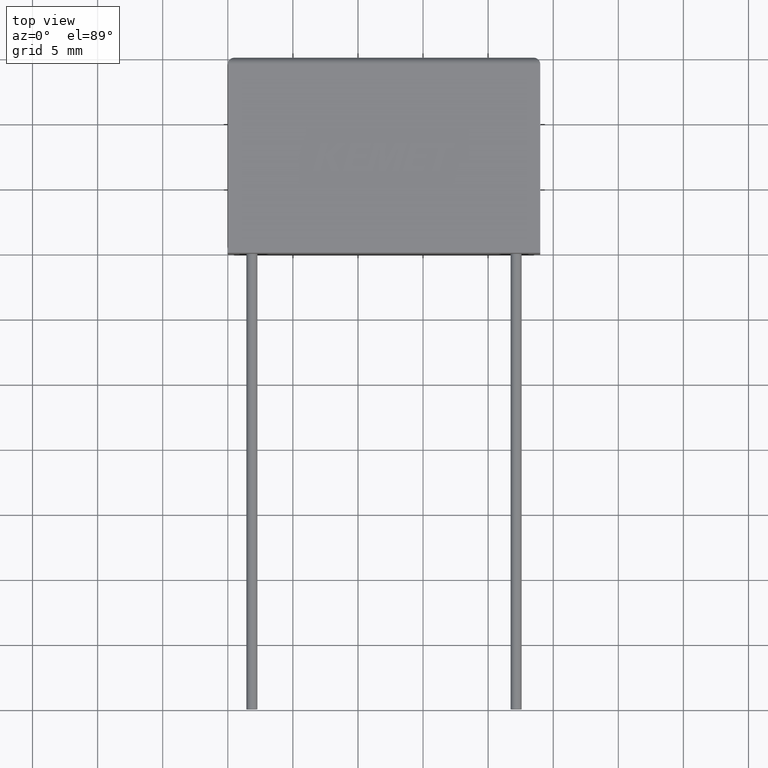
[diagram: clean part render]
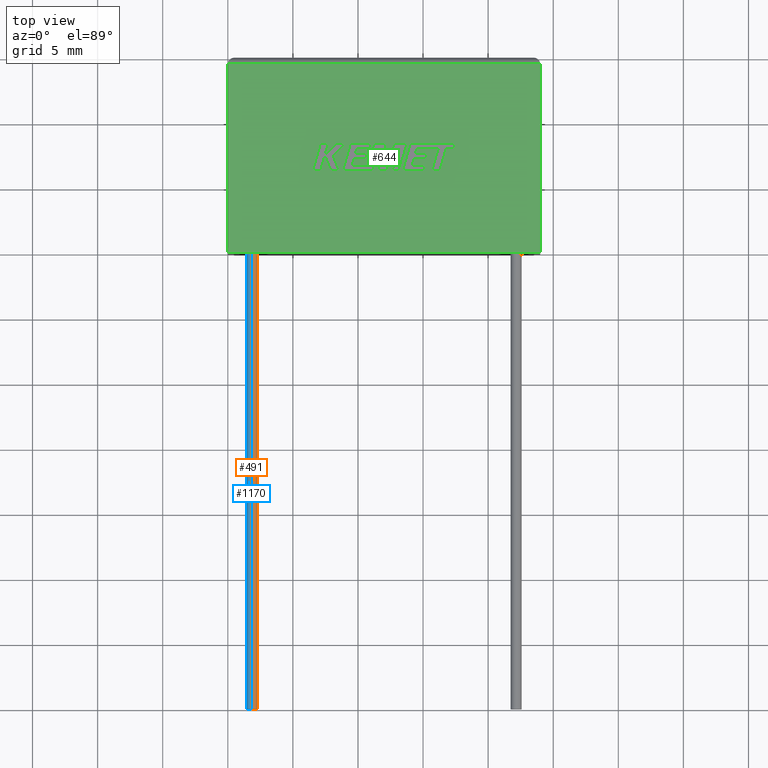
[diagram: same view with three faces highlighted in distinct colors, each labeled with its STEP entity id]
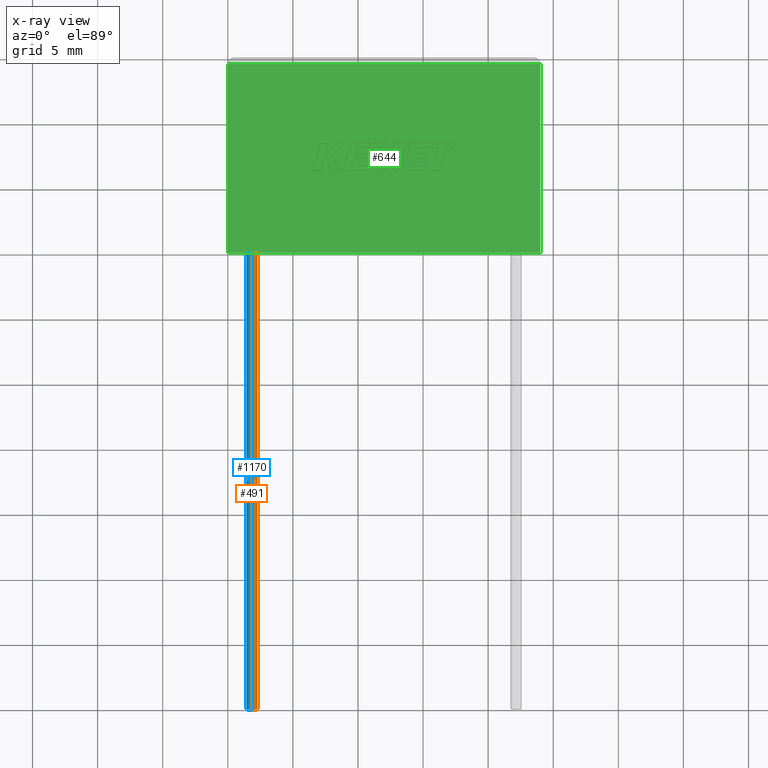
[diagram: x-ray of the same camera — body ghosted, the three highlighted faces saturated]
A machine part, top view with three faces highlighted in distinct colors.
The next image is the same camera in x-ray (body ghosted, the three faces saturated) — at least one of them is partly hidden behind the body in this view.
Their STEP definitions:

[orange] entity #491 — the highlighted cylindrical surface (edge-blend (fillet) strip) has radius 0.425 mm, axis along (-0, 1, -0).
#63 = EDGE_LOOP ( 'NONE', ( #2212, #1731, #563, #1818 ) ) ;
#71 = EDGE_CURVE ( 'NONE', #1157, #1969, #524, .T. ) ;
#131 = FACE_OUTER_BOUND ( 'NONE', #63, .T. ) ;
#147 = LINE ( 'NONE', #1650, #518 ) ;
#152 = DIRECTION ( 'NONE',  ( -0.0000000000000000000, -1.000000000000000000, -0.0000000000000000000 ) ) ;
#351 = CARTESIAN_POINT ( 'NONE',  ( 1.849999999999999200, 0.0000000000000000000, 4.074999999999998400 ) ) ;
#491 = ADVANCED_FACE ( 'NONE', ( #131 ), #1719, .T. ) ;
#518 = VECTOR ( 'NONE', #667, 1000.000000000000000 ) ;
#524 = LINE ( 'NONE', #2470, #2406 ) ;
#563 = ORIENTED_EDGE ( 'NONE', *, *, #1362, .T. ) ;
#667 = DIRECTION ( 'NONE',  ( -0.0000000000000000000, 1.000000000000000000, -0.0000000000000000000 ) ) ;
#711 = CARTESIAN_POINT ( 'NONE',  ( 1.849999999999999200, 0.0000000000000000000, 4.499999999999999100 ) ) ;
#976 = AXIS2_PLACEMENT_3D ( 'NONE', #711, #152, #1516 ) ;
#1157 = VERTEX_POINT ( 'NONE', #1429 ) ;
#1240 = DIRECTION ( 'NONE',  ( 0.0000000000000000000, 0.0000000000000000000, 1.000000000000000000 ) ) ;
#1260 = CARTESIAN_POINT ( 'NONE',  ( 1.849999999999999200, 0.0000000000000000000, 4.924999999999998900 ) ) ;
#1300 = AXIS2_PLACEMENT_3D ( 'NONE', #1817, #2011, #1240 ) ;
#1355 = DIRECTION ( 'NONE',  ( 0.0000000000000000000, -1.000000000000000000, 0.0000000000000000000 ) ) ;
#1362 = EDGE_CURVE ( 'NONE', #1969, #1875, #2345, .T. ) ;
#1383 = VERTEX_POINT ( 'NONE', #2256 ) ;
#1429 = CARTESIAN_POINT ( 'NONE',  ( 1.849999999999999200, -35.00000000000000000, 4.074999999999998400 ) ) ;
#1516 = DIRECTION ( 'NONE',  ( 0.0000000000000000000, 0.0000000000000000000, 1.000000000000000000 ) ) ;
#1650 = CARTESIAN_POINT ( 'NONE',  ( 1.849999999999999200, -35.00000000000000000, 4.924999999999998900 ) ) ;
#1719 = CYLINDRICAL_SURFACE ( 'NONE', #1300, 0.4250000000000000400 ) ;
#1731 = ORIENTED_EDGE ( 'NONE', *, *, #71, .T. ) ;
#1817 = CARTESIAN_POINT ( 'NONE',  ( 1.849999999999999200, -35.00000000000000000, 4.499999999999999100 ) ) ;
#1818 = ORIENTED_EDGE ( 'NONE', *, *, #1845, .F. ) ;
#1845 = EDGE_CURVE ( 'NONE', #1383, #1875, #147, .T. ) ;
#1875 = VERTEX_POINT ( 'NONE', #1260 ) ;
#1969 = VERTEX_POINT ( 'NONE', #351 ) ;
#2011 = DIRECTION ( 'NONE',  ( -0.0000000000000000000, 1.000000000000000000, -0.0000000000000000000 ) ) ;
#2160 = DIRECTION ( 'NONE',  ( 0.0000000000000000000, 0.0000000000000000000, -1.000000000000000000 ) ) ;
#2200 = EDGE_CURVE ( 'NONE', #1157, #1383, #2351, .T. ) ;
#2212 = ORIENTED_EDGE ( 'NONE', *, *, #2200, .F. ) ;
#2256 = CARTESIAN_POINT ( 'NONE',  ( 1.849999999999999200, -35.00000000000000000, 4.924999999999998900 ) ) ;
#2345 = CIRCLE ( 'NONE', #976, 0.4250000000000000400 ) ;
#2351 = CIRCLE ( 'NONE', #2387, 0.4250000000000000400 ) ;
#2387 = AXIS2_PLACEMENT_3D ( 'NONE', #2477, #1355, #2160 ) ;
#2406 = VECTOR ( 'NONE', #2475, 1000.000000000000000 ) ;
#2470 = CARTESIAN_POINT ( 'NONE',  ( 1.849999999999999200, -35.00000000000000000, 4.074999999999998400 ) ) ;
#2475 = DIRECTION ( 'NONE',  ( -0.0000000000000000000, 1.000000000000000000, -0.0000000000000000000 ) ) ;
#2477 = CARTESIAN_POINT ( 'NONE',  ( 1.849999999999999200, -35.00000000000000000, 4.499999999999999100 ) ) ;

[blue] entity #1170 — the highlighted cylindrical surface (edge-blend (fillet) strip) has radius 0.425 mm, axis along (-0, 1, -0).
#71 = EDGE_CURVE ( 'NONE', #1157, #1969, #524, .T. ) ;
#147 = LINE ( 'NONE', #1650, #518 ) ;
#155 = CYLINDRICAL_SURFACE ( 'NONE', #1758, 0.4250000000000000400 ) ;
#200 = ORIENTED_EDGE ( 'NONE', *, *, #725, .F. ) ;
#287 = DIRECTION ( 'NONE',  ( 0.0000000000000000000, 0.0000000000000000000, 1.000000000000000000 ) ) ;
#351 = CARTESIAN_POINT ( 'NONE',  ( 1.849999999999999200, 0.0000000000000000000, 4.074999999999998400 ) ) ;
#484 = ORIENTED_EDGE ( 'NONE', *, *, #1901, .T. ) ;
#510 = DIRECTION ( 'NONE',  ( 0.0000000000000000000, 0.0000000000000000000, 1.000000000000000000 ) ) ;
#518 = VECTOR ( 'NONE', #667, 1000.000000000000000 ) ;
#524 = LINE ( 'NONE', #2470, #2406 ) ;
#667 = DIRECTION ( 'NONE',  ( -0.0000000000000000000, 1.000000000000000000, -0.0000000000000000000 ) ) ;
#698 = DIRECTION ( 'NONE',  ( 0.0000000000000000000, 0.0000000000000000000, -1.000000000000000000 ) ) ;
#725 = EDGE_CURVE ( 'NONE', #1383, #1157, #864, .T. ) ;
#864 = CIRCLE ( 'NONE', #2258, 0.4250000000000000400 ) ;
#911 = ORIENTED_EDGE ( 'NONE', *, *, #71, .F. ) ;
#984 = AXIS2_PLACEMENT_3D ( 'NONE', #1067, #1462, #510 ) ;
#1067 = CARTESIAN_POINT ( 'NONE',  ( 1.849999999999999200, 0.0000000000000000000, 4.499999999999999100 ) ) ;
#1157 = VERTEX_POINT ( 'NONE', #1429 ) ;
#1170 = ADVANCED_FACE ( 'NONE', ( #2046 ), #155, .T. ) ;
#1236 = CARTESIAN_POINT ( 'NONE',  ( 1.849999999999999200, -35.00000000000000000, 4.499999999999999100 ) ) ;
#1260 = CARTESIAN_POINT ( 'NONE',  ( 1.849999999999999200, 0.0000000000000000000, 4.924999999999998900 ) ) ;
#1310 = ORIENTED_EDGE ( 'NONE', *, *, #1845, .T. ) ;
#1383 = VERTEX_POINT ( 'NONE', #2256 ) ;
#1429 = CARTESIAN_POINT ( 'NONE',  ( 1.849999999999999200, -35.00000000000000000, 4.074999999999998400 ) ) ;
#1462 = DIRECTION ( 'NONE',  ( -0.0000000000000000000, -1.000000000000000000, -0.0000000000000000000 ) ) ;
#1590 = DIRECTION ( 'NONE',  ( -0.0000000000000000000, 1.000000000000000000, -0.0000000000000000000 ) ) ;
#1632 = DIRECTION ( 'NONE',  ( 0.0000000000000000000, -1.000000000000000000, 0.0000000000000000000 ) ) ;
#1648 = EDGE_LOOP ( 'NONE', ( #911, #200, #1310, #484 ) ) ;
#1650 = CARTESIAN_POINT ( 'NONE',  ( 1.849999999999999200, -35.00000000000000000, 4.924999999999998900 ) ) ;
#1758 = AXIS2_PLACEMENT_3D ( 'NONE', #1992, #1590, #287 ) ;
#1845 = EDGE_CURVE ( 'NONE', #1383, #1875, #147, .T. ) ;
#1875 = VERTEX_POINT ( 'NONE', #1260 ) ;
#1901 = EDGE_CURVE ( 'NONE', #1875, #1969, #2429, .T. ) ;
#1969 = VERTEX_POINT ( 'NONE', #351 ) ;
#1992 = CARTESIAN_POINT ( 'NONE',  ( 1.849999999999999200, -35.00000000000000000, 4.499999999999999100 ) ) ;
#2046 = FACE_OUTER_BOUND ( 'NONE', #1648, .T. ) ;
#2256 = CARTESIAN_POINT ( 'NONE',  ( 1.849999999999999200, -35.00000000000000000, 4.924999999999998900 ) ) ;
#2258 = AXIS2_PLACEMENT_3D ( 'NONE', #1236, #1632, #698 ) ;
#2406 = VECTOR ( 'NONE', #2475, 1000.000000000000000 ) ;
#2429 = CIRCLE ( 'NONE', #984, 0.4250000000000000400 ) ;
#2470 = CARTESIAN_POINT ( 'NONE',  ( 1.849999999999999200, -35.00000000000000000, 4.074999999999998400 ) ) ;
#2475 = DIRECTION ( 'NONE',  ( -0.0000000000000000000, 1.000000000000000000, -0.0000000000000000000 ) ) ;

[green] entity #644 — the highlighted planar face has unit normal (0, 0, -1).
#66 = DIRECTION ( 'NONE',  ( -0.0000000000000000000, -1.000000000000000000, -0.0000000000000000000 ) ) ;
#124 = VERTEX_POINT ( 'NONE', #1523 ) ;
#156 = CARTESIAN_POINT ( 'NONE',  ( 0.0000000000000000000, 0.0000000000000000000, 9.000000000000000000 ) ) ;
#304 = VECTOR ( 'NONE', #2305, 1000.000000000000000 ) ;
#353 = DIRECTION ( 'NONE',  ( -1.000000000000000000, 0.0000000000000000000, -0.0000000000000000000 ) ) ;
#365 = AXIS2_PLACEMENT_3D ( 'NONE', #156, #2052, #353 ) ;
#386 = EDGE_CURVE ( 'NONE', #420, #124, #2143, .T. ) ;
#420 = VERTEX_POINT ( 'NONE', #1950 ) ;
#467 = CARTESIAN_POINT ( 'NONE',  ( 0.0000000000000000000, 0.0000000000000000000, 9.000000000000000000 ) ) ;
#478 = ORIENTED_EDGE ( 'NONE', *, *, #724, .T. ) ;
#520 = LINE ( 'NONE', #767, #304 ) ;
#633 = VERTEX_POINT ( 'NONE', #1275 ) ;
#644 = ADVANCED_FACE ( 'NONE', ( #1226 ), #1679, .F. ) ;
#681 = EDGE_LOOP ( 'NONE', ( #478, #1443, #2480, #800 ) ) ;
#686 = CARTESIAN_POINT ( 'NONE',  ( 24.00000000000000000, 0.0000000000000000000, 9.000000000000000000 ) ) ;
#724 = EDGE_CURVE ( 'NONE', #633, #2218, #1835, .T. ) ;
#767 = CARTESIAN_POINT ( 'NONE',  ( 0.0000000000000000000, 0.0000000000000000000, 9.000000000000000000 ) ) ;
#800 = ORIENTED_EDGE ( 'NONE', *, *, #1574, .T. ) ;
#807 = CARTESIAN_POINT ( 'NONE',  ( 0.0000000000000000000, 14.49999999999999800, 9.000000000000000000 ) ) ;
#1226 = FACE_OUTER_BOUND ( 'NONE', #681, .T. ) ;
#1275 = CARTESIAN_POINT ( 'NONE',  ( 24.00000000000000000, 0.0000000000000000000, 9.000000000000000000 ) ) ;
#1324 = LINE ( 'NONE', #807, #1387 ) ;
#1387 = VECTOR ( 'NONE', #1757, 1000.000000000000000 ) ;
#1443 = ORIENTED_EDGE ( 'NONE', *, *, #2316, .T. ) ;
#1523 = CARTESIAN_POINT ( 'NONE',  ( 0.0000000000000000000, 0.0000000000000000000, 9.000000000000000000 ) ) ;
#1574 = EDGE_CURVE ( 'NONE', #124, #633, #520, .T. ) ;
#1679 = PLANE ( 'NONE',  #365 ) ;
#1757 = DIRECTION ( 'NONE',  ( -1.000000000000000000, 0.0000000000000000000, 0.0000000000000000000 ) ) ;
#1835 = LINE ( 'NONE', #686, #1922 ) ;
#1922 = VECTOR ( 'NONE', #2024, 1000.000000000000000 ) ;
#1950 = CARTESIAN_POINT ( 'NONE',  ( 0.0000000000000000000, 14.49999999999999800, 9.000000000000000000 ) ) ;
#2024 = DIRECTION ( 'NONE',  ( 0.0000000000000000000, 1.000000000000000000, 0.0000000000000000000 ) ) ;
#2052 = DIRECTION ( 'NONE',  ( 0.0000000000000000000, 0.0000000000000000000, -1.000000000000000000 ) ) ;
#2053 = VECTOR ( 'NONE', #66, 1000.000000000000000 ) ;
#2115 = CARTESIAN_POINT ( 'NONE',  ( 24.00000000000000000, 14.49999999999999800, 9.000000000000000000 ) ) ;
#2143 = LINE ( 'NONE', #467, #2053 ) ;
#2218 = VERTEX_POINT ( 'NONE', #2115 ) ;
#2305 = DIRECTION ( 'NONE',  ( 1.000000000000000000, 0.0000000000000000000, 0.0000000000000000000 ) ) ;
#2316 = EDGE_CURVE ( 'NONE', #2218, #420, #1324, .T. ) ;
#2480 = ORIENTED_EDGE ( 'NONE', *, *, #386, .T. ) ;